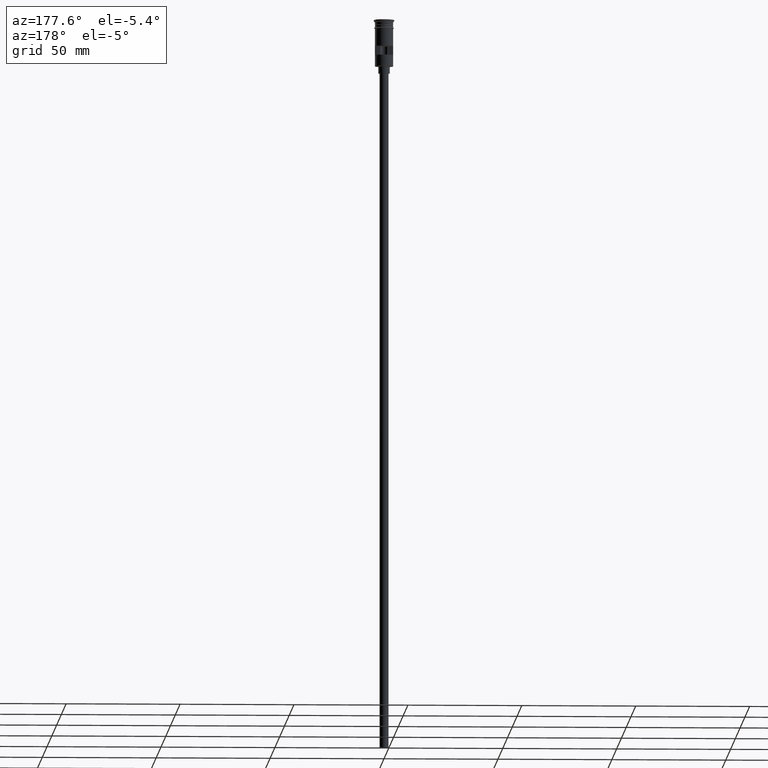
[diagram: clean part render]
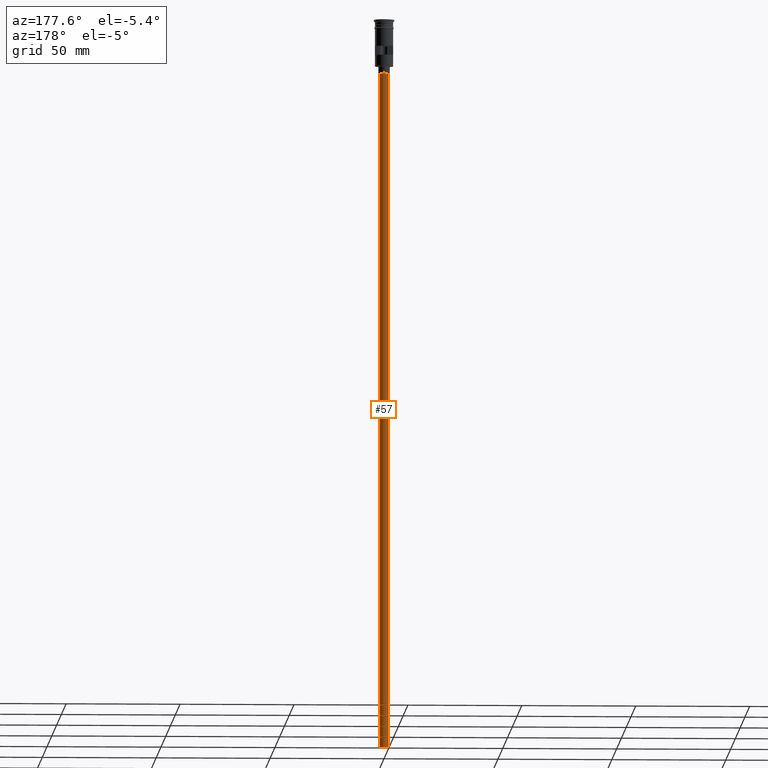
[diagram: same view with one face highlighted and labeled with its STEP entity id]
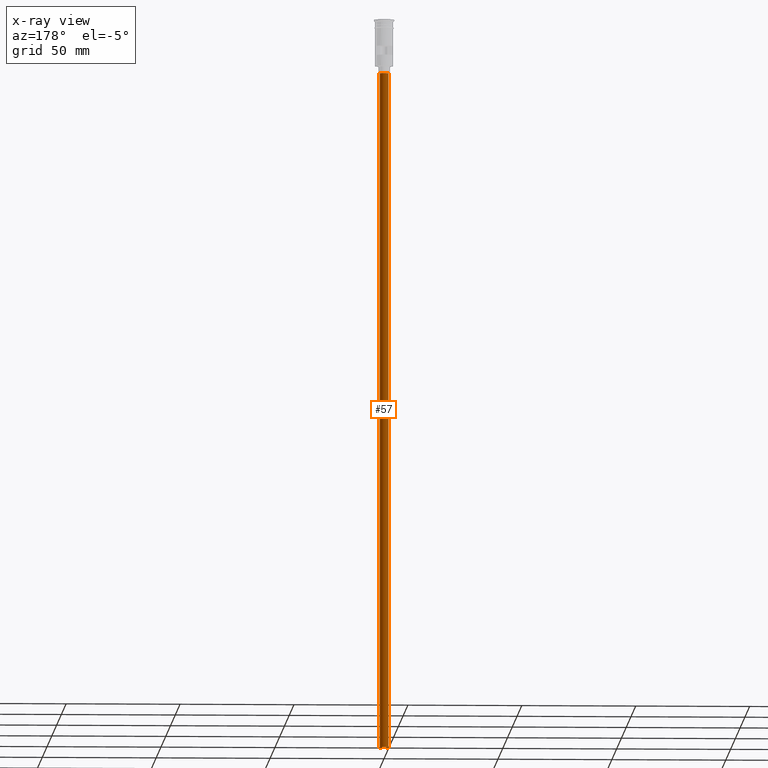
[diagram: x-ray of the same camera — body ghosted, the highlighted face saturated]
A machine part, auxiliary view. The second image highlights one B-rep face of the part: STEP entity #57.
The next image is the same camera in x-ray: the body ghosted, the highlighted face saturated — about 0% of this face is hidden behind the body in this view.
In plain terms, the highlighted cylindrical surface (edge-blend (fillet) strip) has radius 2 mm, axis along (-0, -0, 1).
Its self-contained STEP definition (entity closure, byte-faithful):
#57 = ADVANCED_FACE ( 'NONE', ( #930 ), #430, .T. ) ;
#140 = EDGE_LOOP ( 'NONE', ( #1317, #295, #349, #617 ) ) ;
#188 = AXIS2_PLACEMENT_3D ( 'NONE', #574, #467, #312 ) ;
#201 = DIRECTION ( 'NONE',  ( 0.000000000000000000, 0.000000000000000000, -1.000000000000000000 ) ) ;
#295 = ORIENTED_EDGE ( 'NONE', *, *, #315, .T. ) ;
#312 = DIRECTION ( 'NONE',  ( 1.000000000000000000, 0.000000000000000000, 0.000000000000000000 ) ) ;
#315 = EDGE_CURVE ( 'NONE', #481, #1462, #534, .T. ) ;
#349 = ORIENTED_EDGE ( 'NONE', *, *, #1298, .T. ) ;
#415 = VECTOR ( 'NONE', #657, 1000.000000000000000 ) ;
#430 = CYLINDRICAL_SURFACE ( 'NONE', #188, 2.000000000000000000 ) ;
#467 = DIRECTION ( 'NONE',  ( -0.000000000000000000, -0.000000000000000000, 1.000000000000000000 ) ) ;
#468 = CARTESIAN_POINT ( 'NONE',  ( 0.000000000000000000, 0.000000000000000000, -320.5000000000000000 ) ) ;
#481 = VERTEX_POINT ( 'NONE', #1184 ) ;
#534 = LINE ( 'NONE', #1270, #415 ) ;
#574 = CARTESIAN_POINT ( 'NONE',  ( 0.000000000000000000, 0.000000000000000000, -320.5000000000000000 ) ) ;
#617 = ORIENTED_EDGE ( 'NONE', *, *, #1336, .F. ) ;
#657 = DIRECTION ( 'NONE',  ( -0.000000000000000000, -0.000000000000000000, 1.000000000000000000 ) ) ;
#756 = AXIS2_PLACEMENT_3D ( 'NONE', #815, #1212, #1319 ) ;
#815 = CARTESIAN_POINT ( 'NONE',  ( 0.000000000000000000, 0.000000000000000000, -23.49999999999999645 ) ) ;
#866 = AXIS2_PLACEMENT_3D ( 'NONE', #468, #201, #1096 ) ;
#930 = FACE_OUTER_BOUND ( 'NONE', #140, .T. ) ;
#1031 = VERTEX_POINT ( 'NONE', #1112 ) ;
#1096 = DIRECTION ( 'NONE',  ( -1.000000000000000000, 0.000000000000000000, 0.000000000000000000 ) ) ;
#1112 = CARTESIAN_POINT ( 'NONE',  ( 2.000000000000000000, 0.000000000000000000, -23.49999999999999645 ) ) ;
#1119 = DIRECTION ( 'NONE',  ( -0.000000000000000000, -0.000000000000000000, 1.000000000000000000 ) ) ;
#1184 = CARTESIAN_POINT ( 'NONE',  ( -2.000000000000000000, 2.449293598294706414E-16, -320.5000000000000000 ) ) ;
#1212 = DIRECTION ( 'NONE',  ( 0.000000000000000000, 0.000000000000000000, -1.000000000000000000 ) ) ;
#1221 = LINE ( 'NONE', #1585, #1429 ) ;
#1229 = CARTESIAN_POINT ( 'NONE',  ( -2.000000000000000000, 2.449293598294706414E-16, -23.49999999999999645 ) ) ;
#1268 = EDGE_CURVE ( 'NONE', #481, #1305, #1453, .T. ) ;
#1270 = CARTESIAN_POINT ( 'NONE',  ( -2.000000000000000000, 2.449293598294706414E-16, -320.5000000000000000 ) ) ;
#1298 = EDGE_CURVE ( 'NONE', #1462, #1031, #1381, .T. ) ;
#1305 = VERTEX_POINT ( 'NONE', #1444 ) ;
#1317 = ORIENTED_EDGE ( 'NONE', *, *, #1268, .F. ) ;
#1319 = DIRECTION ( 'NONE',  ( -1.000000000000000000, 0.000000000000000000, 0.000000000000000000 ) ) ;
#1336 = EDGE_CURVE ( 'NONE', #1305, #1031, #1221, .T. ) ;
#1381 = CIRCLE ( 'NONE', #756, 2.000000000000000000 ) ;
#1429 = VECTOR ( 'NONE', #1119, 1000.000000000000000 ) ;
#1444 = CARTESIAN_POINT ( 'NONE',  ( 2.000000000000000000, 0.000000000000000000, -320.5000000000000000 ) ) ;
#1453 = CIRCLE ( 'NONE', #866, 2.000000000000000000 ) ;
#1462 = VERTEX_POINT ( 'NONE', #1229 ) ;
#1585 = CARTESIAN_POINT ( 'NONE',  ( 2.000000000000000000, 0.000000000000000000, -320.5000000000000000 ) ) ;